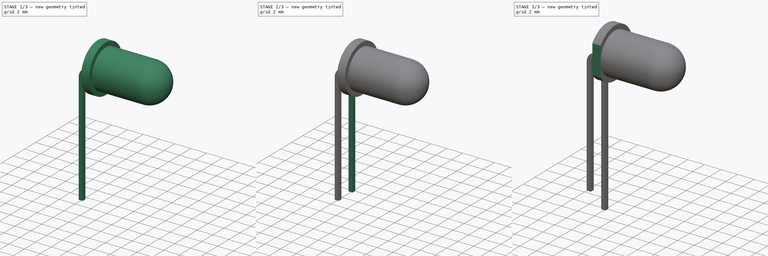
[diagram: build sequence overview — one tinted view per stage of 3, left to right]
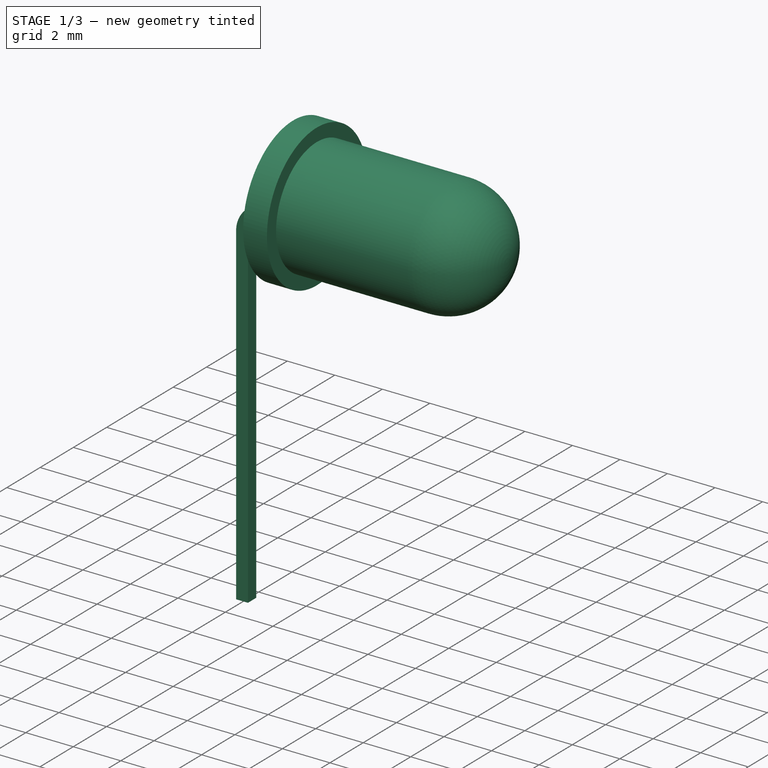
[diagram: stage 1 of 3 — iso view after this stage's code; geometry added in this stage tinted green]
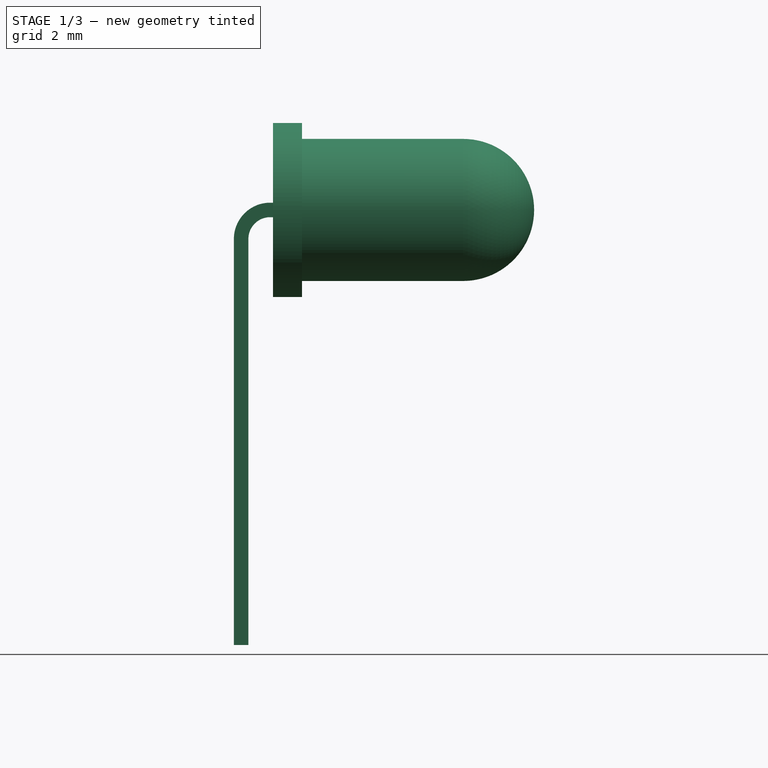
[diagram: stage 1 of 3 — front view after this stage's code; geometry added in this stage tinted green]
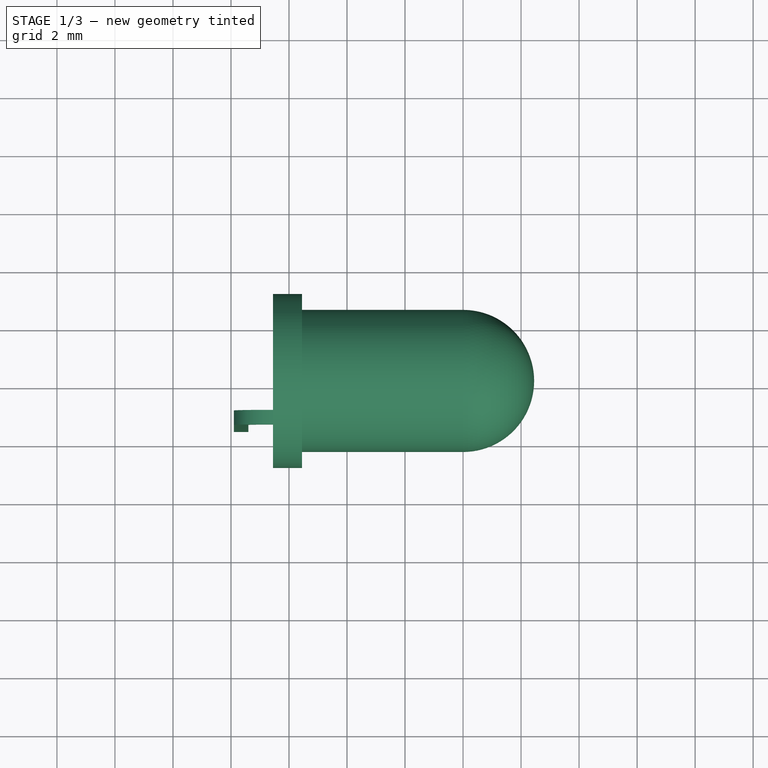
[diagram: stage 1 of 3 — top view after this stage's code; geometry added in this stage tinted green]
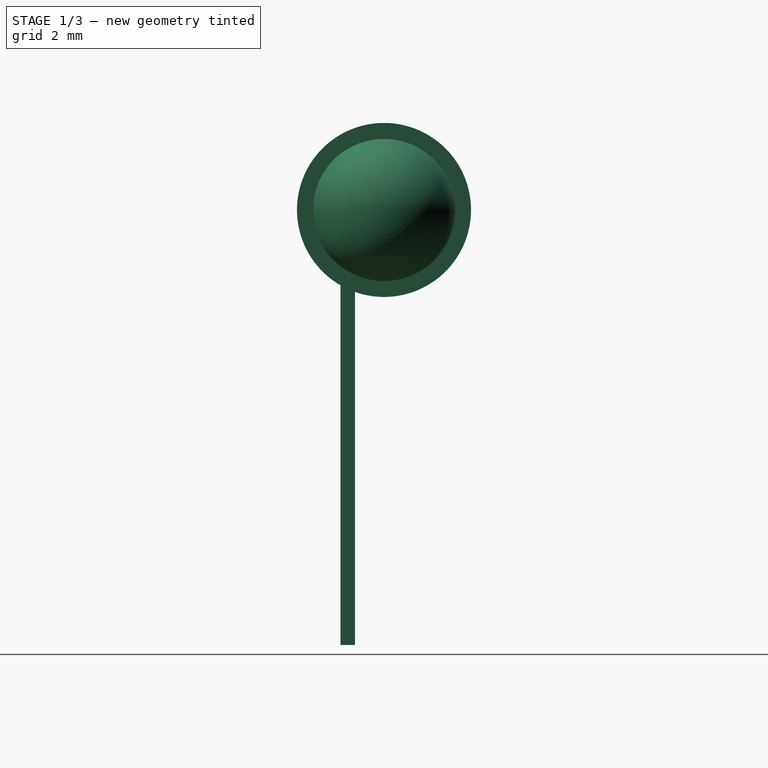
[diagram: stage 1 of 3 — right view after this stage's code; geometry added in this stage tinted green]
FCSTD DOCUMENT  (FreeCAD 1.0R38641 +678 (Git))
Label: LED
License: All rights reserved
LicenseURL: https://en.wikipedia.org/wiki/All_rights_reserved
objects: Sketcher::SketchObject×6, PartDesign::AdditivePipe×2, PartDesign::Revolution×1, PartDesign::Pad×1, PartDesign::Pocket×1, PartDesign::Body×1, App::Part×1
note: 28 computed .brp shape members not serialized (recipe doc carries the construction recipe); baked Part::Feature solids carry a one-line shape summary decoded from their .brp

FEATURE [Sketcher::SketchObject] Sketch
  ArcFitTolerance = 1e-06
  AttachmentSupport = -> [XY_Plane]
  FullyConstrained = true
  MakeInternals = false
  MapMode = 5
  sketch-geometry (8):
    g0: LineSegment StartX=-2e-15 StartY=2.45 StartZ=0 EndX=-5.55 EndY=2.45 EndZ=0
    g1: LineSegment StartX=-5.55 StartY=2.45 StartZ=0 EndX=-5.55 EndY=3 EndZ=0
    g2: LineSegment StartX=-5.55 StartY=3 StartZ=0 EndX=-6.55 EndY=3 EndZ=0
    g3: LineSegment StartX=-6.55 StartY=3 StartZ=0 EndX=-6.55 EndY=0 EndZ=0
    g4: ArcOfCircle CenterX=0 CenterY=0 CenterZ=0 NormalX=0 NormalY=0 NormalZ=1 AngleXU=0 Radius=2.45 StartAngle=0 EndAngle=1.5708
    g5: LineSegment StartX=2.45 StartY=0 StartZ=0 EndX=-6.55 EndY=0 EndZ=0
    g6: GeomPoint X=0 Y=0 Z=0
    g7: LineSegment [constr] StartX=-5.55 StartY=2.45 StartZ=0 EndX=-5.55 EndY=0 EndZ=0
  constraints (22):
    c: PointOnObject(g0,g-2)
    c: Horizontal(g0)
    c: Coincident(g0,g1)
    c: Vertical(g1)
    c: Coincident(g1,g2)
    c: Horizontal(g2)
    c: Coincident(g2,g3)
    c: Vertical(g3)
    c: Coincident(g4,g-1)
    c: Coincident(g4,g0)
    c: Horizontal(g5)
    c: PointOnObject(g6,g5)
    c: Coincident(g6,g4)
    c: Coincident(g7,g0)
    c: Vertical(g7)
    c: DistanceX(g2,g2) = 1
    c: Coincident(g4,g5)
    c: PointOnObject(g7,g5)
    c: Coincident(g3,g5)
    c: DistanceX(g5,g5) = 9
    c: DistanceY(g3,g3) = 3
    c: DistanceY(g7,g7) = 2.45
FEATURE [PartDesign::Revolution] Revolution
  Angle = 360
  Angle2 = 60
  Axis = (1,0,0)
  Base = (0,0,0)
  Profile = -> Sketch
  ReferenceAxis = -> X_Axis
  Refine = true
  Reversed = true
  Suppressed = false
  Type = 0
FEATURE [Sketcher::SketchObject] Sketch001
  ArcFitTolerance = 1e-06
  AttachmentSupport = -> [Revolution]
  FullyConstrained = true
  MakeInternals = false
  MapMode = 5
  Placement = pos=(-6.55,0,0) rot=(0.57735,-0.57735,-0.57735;2.0944rad)
  sketch-geometry (9):
    g0: LineSegment StartX=-1.5 StartY=0.25 StartZ=0 EndX=-1.5 EndY=-0.25 EndZ=0
    g1: LineSegment StartX=-1.5 StartY=-0.25 StartZ=0 EndX=-1 EndY=-0.25 EndZ=0
    g2: LineSegment StartX=-1 StartY=-0.25 StartZ=0 EndX=-1 EndY=0.25 EndZ=0
    g3: LineSegment StartX=-1 StartY=0.25 StartZ=0 EndX=-1.5 EndY=0.25 EndZ=0
    g4: LineSegment StartX=1 StartY=0.25 StartZ=0 EndX=1 EndY=-0.25 EndZ=0
    g5: LineSegment StartX=1 StartY=-0.25 StartZ=0 EndX=1.5 EndY=-0.25 EndZ=0
    g6: LineSegment StartX=1.5 StartY=-0.25 StartZ=0 EndX=1.5 EndY=0.25 EndZ=0
    g7: LineSegment StartX=1.5 StartY=0.25 StartZ=0 EndX=1 EndY=0.25 EndZ=0
    g8: LineSegment [constr] StartX=-1 StartY=0.25 StartZ=0 EndX=1 EndY=0.25 EndZ=0
  constraints (25):
    c: Coincident(g0,g1)
    c: Coincident(g1,g2)
    c: Coincident(g2,g3)
    c: Coincident(g3,g0)
    c: Vertical(g0)
    c: Vertical(g2)
    c: Horizontal(g1)
    c: Horizontal(g3)
    c: Coincident(g4,g5)
    c: Coincident(g5,g6)
    c: Coincident(g6,g7)
    c: Coincident(g7,g4)
    c: Vertical(g4)
    c: Vertical(g6)
    c: Horizontal(g5)
    c: Horizontal(g7)
    c: DistanceX(g3,g3) = 0.5
    c: DistanceY(g0,g0) = 0.5
    c: Equal(g7,g3)
    c: Coincident(g8,g2)
    c: Coincident(g8,g4)
    c: Horizontal(g8)
    c: Equal(g4,g0)
    c: Symmetric(g2,g4,g-1)
    c: DistanceX(g8,g8) = 2
FEATURE [Sketcher::SketchObject] Sketch003
  ArcFitTolerance = 1e-06
  AttachmentSupport = -> [XZ_Plane,Revolution]
  ExternalGeometry = -> [Revolution]
  FullyConstrained = true
  MakeInternals = false
  MapMode = 5
  Placement = pos=(0,0,0) rot=(1,0,0;1.5708rad)
  sketch-geometry (4):
    g0: LineSegment StartX=-6.55 StartY=-2e-16 StartZ=0 EndX=-6.65 EndY=-2e-16 EndZ=0
    g1: LineSegment StartX=-7.65 StartY=-1 StartZ=0 EndX=-7.65 EndY=-15 EndZ=0
    g2: ArcOfCircle CenterX=-6.65 CenterY=-1 CenterZ=0 NormalX=0 NormalY=0 NormalZ=1 AngleXU=0 Radius=1 StartAngle=1.5708 EndAngle=3.14159
    g3: GeomPoint [constr] X=-7.65 Y=0 Z=0
  constraints (10):
    c: Symmetric(g-3,g-3,g0)
    c: PointOnObject(g3,g-1)
    c: Vertical(g1)
    c: PointOnObject(g3,g0)
    c: PointOnObject(g3,g1)
    c: Tangent(g0,g2) = -1.5708
    c: Tangent(g1,g2) = -1.5708
    c: DistanceX(g0,g0) = 0.1
    c: DistanceX(g1,g0) = 1
    c: DistanceY(g1,g1) = 14
FEATURE [Sketcher::SketchObject] Sketch005
  ArcFitTolerance = 1e-06
  AttachmentSupport = -> [Revolution]
  ExternalGeometry = -> [Sketch001]
  FullyConstrained = true
  MakeInternals = false
  MapMode = 5
  Placement = pos=(-6.55,0,0) rot=(0.57735,-0.57735,-0.57735;2.0944rad)
  sketch-geometry (4):
    g0: LineSegment StartX=1 StartY=0.25 StartZ=0 EndX=1.5 EndY=0.25 EndZ=0
    g1: LineSegment StartX=1.5 StartY=-0.25 StartZ=0 EndX=1.5 EndY=0.25 EndZ=0
    g2: LineSegment StartX=1 StartY=0.25 StartZ=0 EndX=1 EndY=-0.25 EndZ=0
    g3: LineSegment StartX=1 StartY=-0.25 StartZ=0 EndX=1.5 EndY=-0.25 EndZ=0
  constraints (8):
    c: Coincident(g0,g-6)
    c: Coincident(g0,g-4)
    c: Coincident(g1,g-5)
    c: Coincident(g1,g0)
    c: Coincident(g2,g0)
    c: Coincident(g2,g-6)
    c: Coincident(g3,g2)
    c: Coincident(g3,g1)
FEATURE [Sketcher::SketchObject] Sketch006
  ArcFitTolerance = 1e-06
  AttachmentSupport = -> [Revolution]
  ExternalGeometry = -> [Sketch001]
  FullyConstrained = true
  MakeInternals = false
  MapMode = 5
  Placement = pos=(-6.55,0,0) rot=(0.57735,-0.57735,-0.57735;2.0944rad)
  sketch-geometry (4):
    g0: LineSegment StartX=-1.5 StartY=0.25 StartZ=0 EndX=-1 EndY=0.25 EndZ=0
    g1: LineSegment StartX=-1 StartY=0.25 StartZ=0 EndX=-1 EndY=-0.25 EndZ=0
    g2: LineSegment StartX=-1 StartY=-0.25 StartZ=0 EndX=-1.5 EndY=-0.25 EndZ=0
    g3: LineSegment StartX=-1.5 StartY=-0.25 StartZ=0 EndX=-1.5 EndY=0.25 EndZ=0
  constraints (8):
    c: Coincident(g0,g-6)
    c: Coincident(g0,g-4)
    c: Coincident(g1,g0)
    c: Coincident(g1,g-5)
    c: Coincident(g2,g-5)
    c: Coincident(g2,g-6)
    c: Coincident(g3,g2)
    c: Coincident(g3,g0)
FEATURE [PartDesign::AdditivePipe] AdditivePipe
  AuxilleryCurvelinear = true
  AuxillerySpineTangent = false
  BaseFeature = -> Revolution
  Binormal = (0,0,0)
  Mode = 0
  Profile = -> Sketch005
  Refine = true
  Spine = -> Sketch003
  SpineTangent = false
  Suppressed = false
  Transformation = 0
  Transition = 0
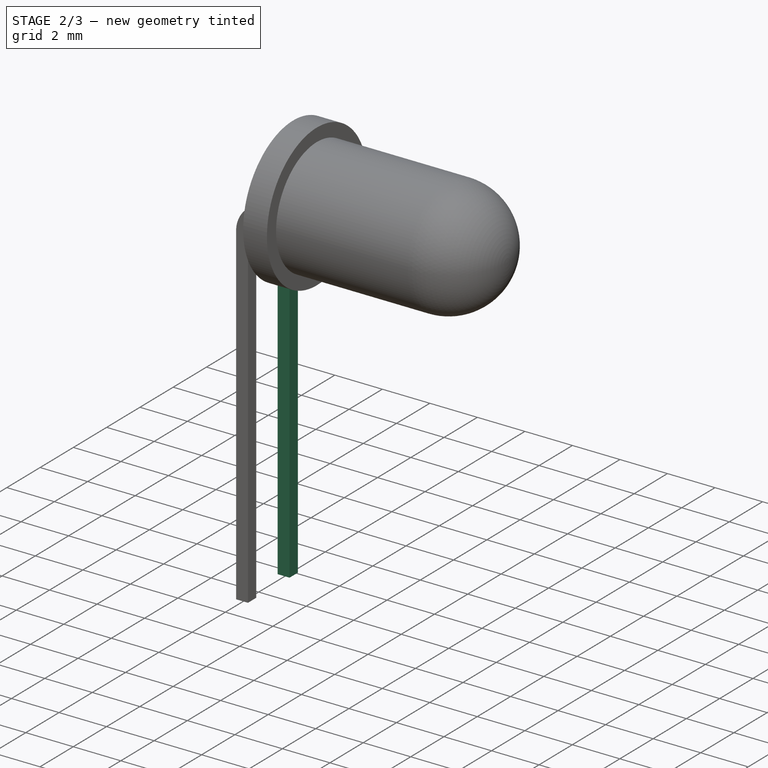
[diagram: stage 2 of 3 — iso view after this stage's code; geometry added in this stage tinted green]
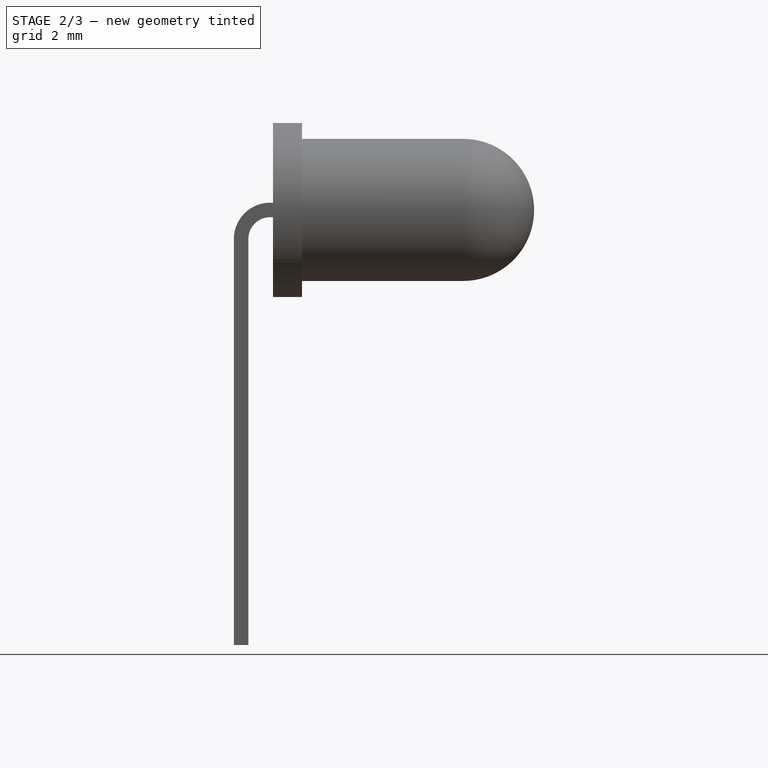
[diagram: stage 2 of 3 — front view after this stage's code; geometry added in this stage tinted green]
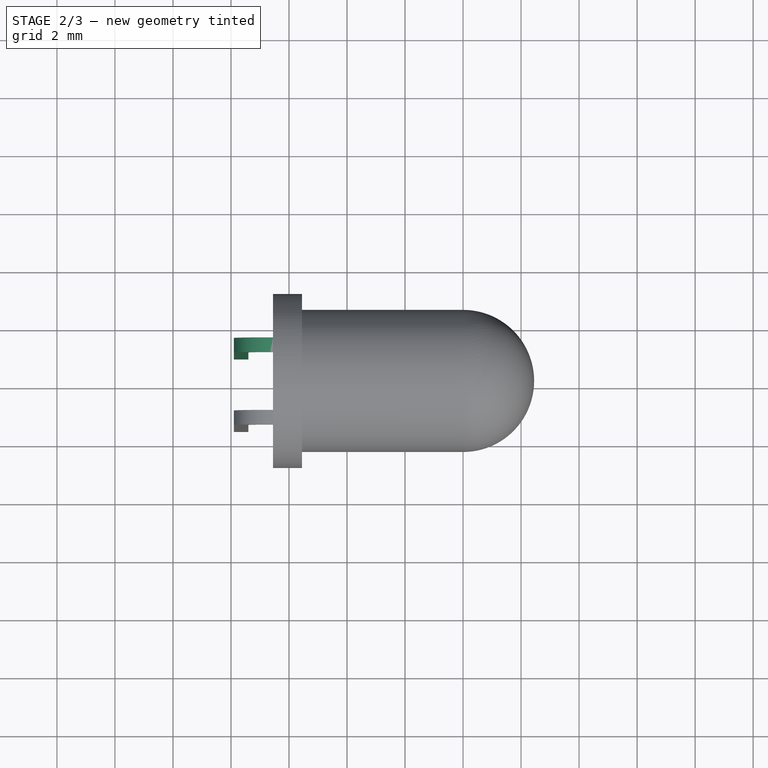
[diagram: stage 2 of 3 — top view after this stage's code; geometry added in this stage tinted green]
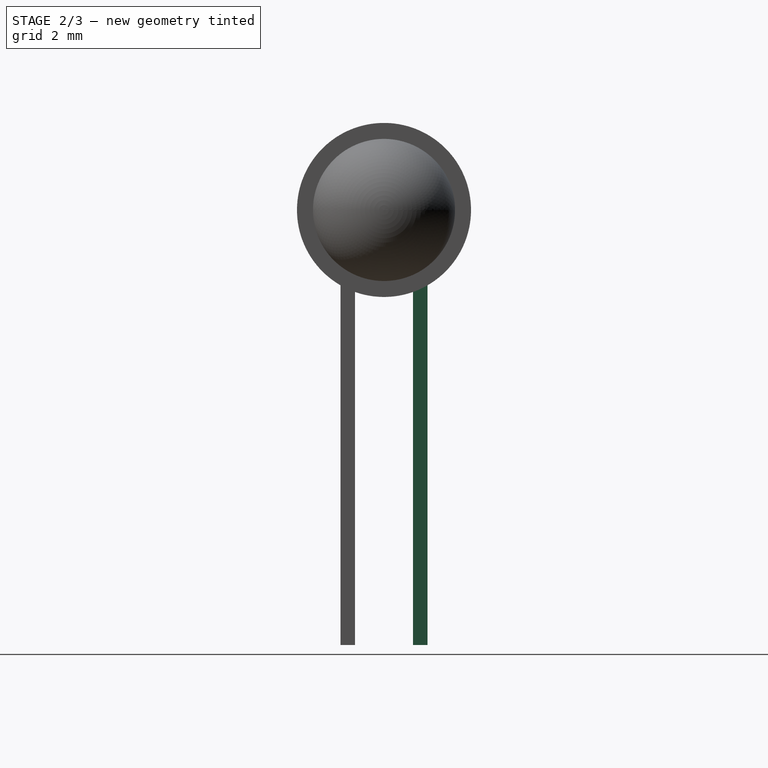
[diagram: stage 2 of 3 — right view after this stage's code; geometry added in this stage tinted green]
FEATURE [PartDesign::AdditivePipe] AdditivePipe001
  AuxilleryCurvelinear = true
  AuxillerySpineTangent = false
  BaseFeature = -> AdditivePipe
  Binormal = (0,0,0)
  Mode = 0
  Profile = -> Sketch006
  Refine = true
  Spine = -> Sketch003
  SpineTangent = false
  Suppressed = false
  Transformation = 0
  Transition = 0
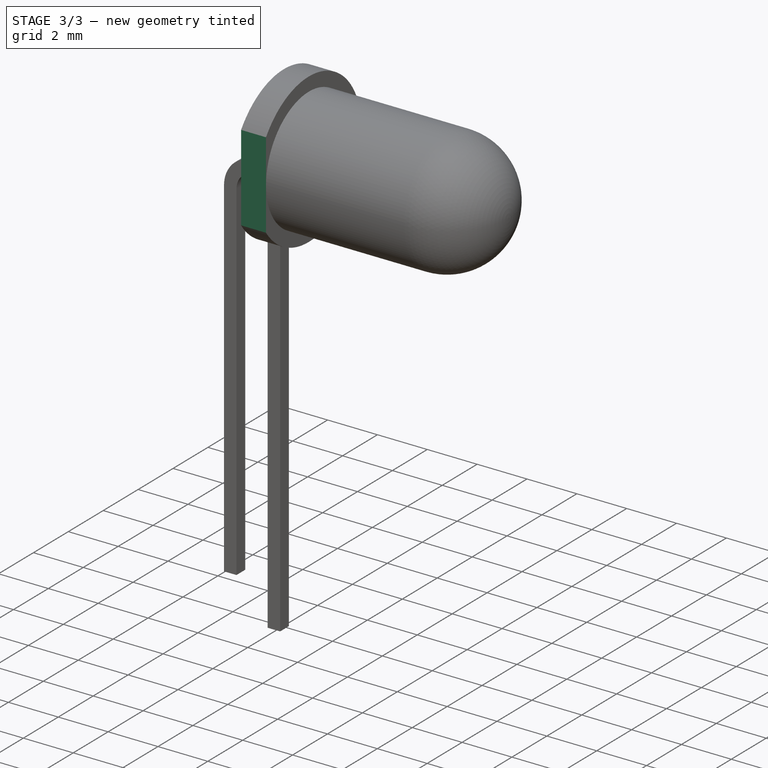
[diagram: stage 3 of 3 — iso view after this stage's code; geometry added in this stage tinted green]
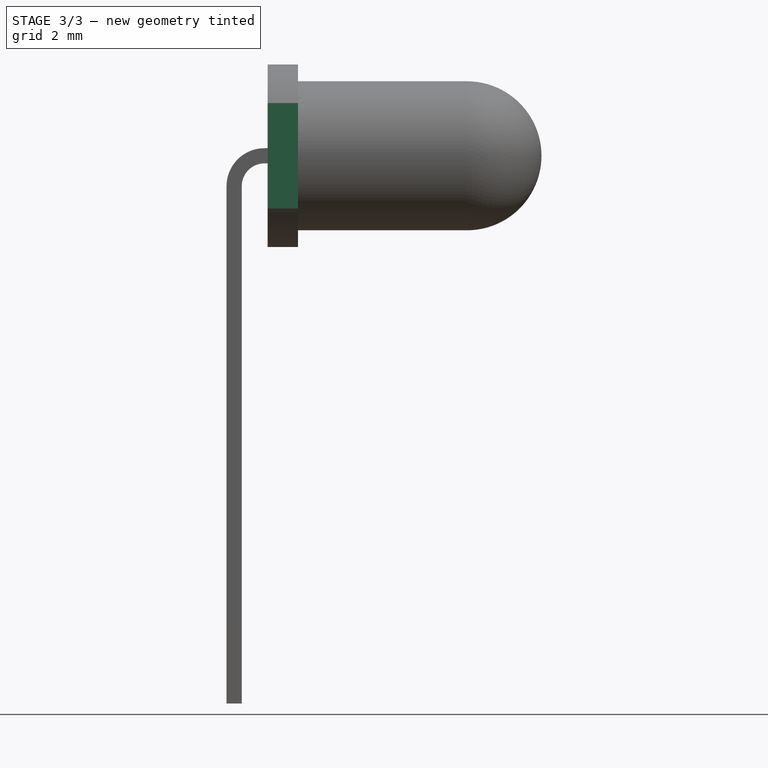
[diagram: stage 3 of 3 — front view after this stage's code; geometry added in this stage tinted green]
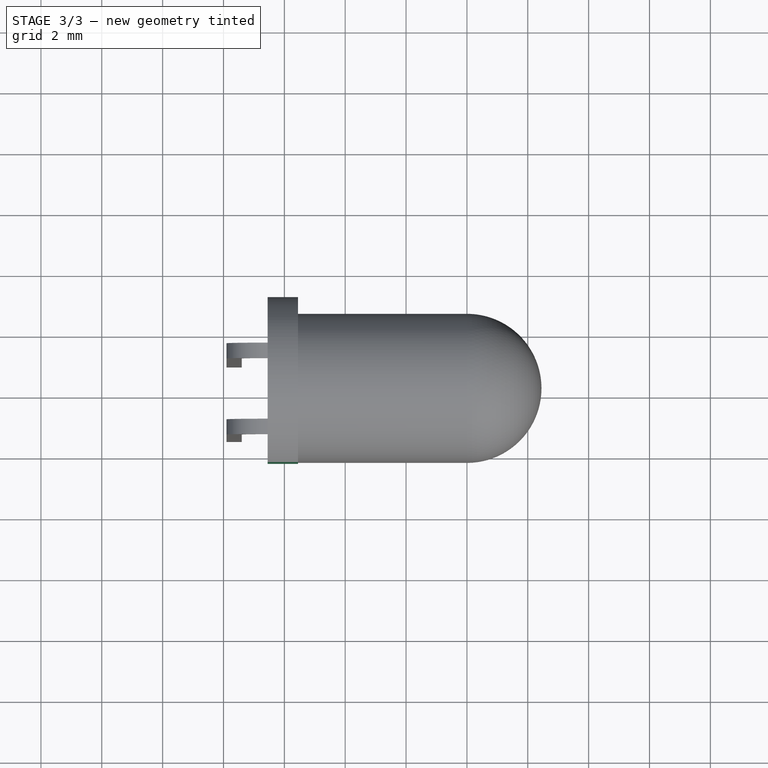
[diagram: stage 3 of 3 — top view after this stage's code; geometry added in this stage tinted green]
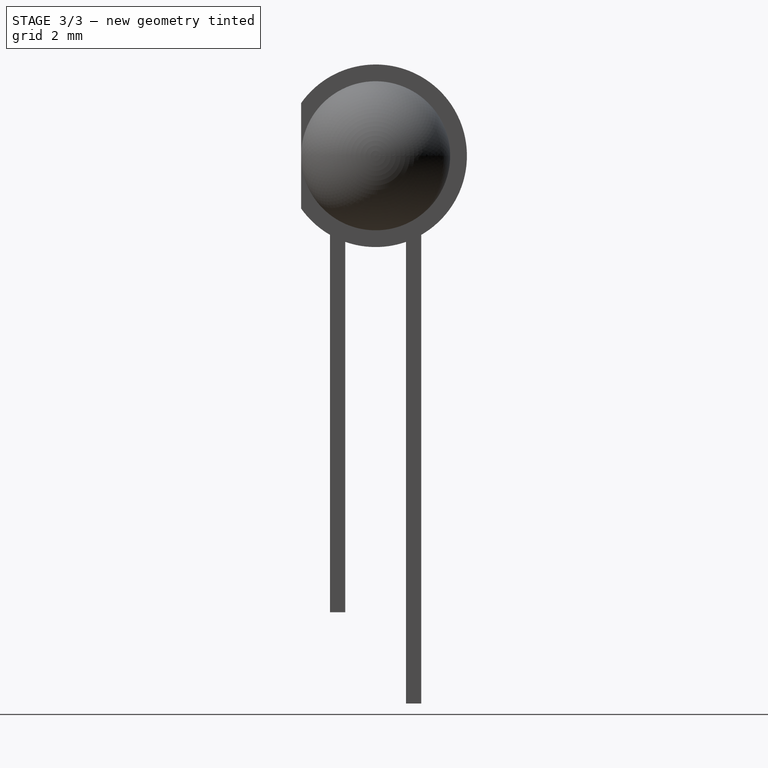
[diagram: stage 3 of 3 — right view after this stage's code; geometry added in this stage tinted green]
FEATURE [PartDesign::Pad] Pad
  BaseFeature = -> AdditivePipe001
  Direction = (0,0,-1)
  Length = 3
  Length2 = 10
  Profile = -> AdditivePipe001 [Face21]
  Refine = true
  Suppressed = false
  Type = 0
FEATURE [Sketcher::SketchObject] Sketch007
  ArcFitTolerance = 1e-06
  AttachmentSupport = -> [Pad]
  ExternalGeometry = -> [Pad]
  FullyConstrained = true
  MakeInternals = false
  MapMode = 5
  Placement = pos=(-5.55,0,0) rot=(0.57735,0.57735,0.57735;2.0944rad)
  sketch-geometry (3):
    g0: LineSegment StartX=-2.45 StartY=1.73133 StartZ=0 EndX=-2.45 EndY=-1.73133 EndZ=0
    g1: ArcOfCircle CenterX=-1.1943e-05 CenterY=5e-16 CenterZ=0 NormalX=0 NormalY=0 NormalZ=1 AngleXU=0 Radius=2.99999 StartAngle=2.52641 EndAngle=3.75678
    g2: GeomPoint X=-2.45 Y=2e-16 Z=0
  constraints (8):
    c: PointOnObject(g0,g-3)
    c: PointOnObject(g0,g-3)
    c: Vertical(g0)
    c: Coincident(g1,g0)
    c: Coincident(g1,g0)
    c: Symmetric(g0,g0,g2)
    c: PointOnObject(g2,g-4)
    c: Tangent(g1,g-3)
FEATURE [PartDesign::Pocket] Pocket
  BaseFeature = -> Pad
  Direction = (-1,0,0)
  Length = 5
  Length2 = 5
  Profile = -> Sketch007
  ReferenceAxis = -> Sketch007 [N_Axis]
  Refine = true
  Suppressed = false
  Type = 0
FEATURE [PartDesign::Body] Body
  AllowCompound = false
  Group = -> [Sketch,Revolution,Sketch001,Sketch003,Sketch005,Sketch006,AdditivePipe,AdditivePipe001,Pad,Sketch007,Pocket]
  Origin = -> Origin
  Tip = -> Pocket
FEATURE [App::Part] Part  label="LED"
  Group = -> [Body]
  Origin = -> Origin001
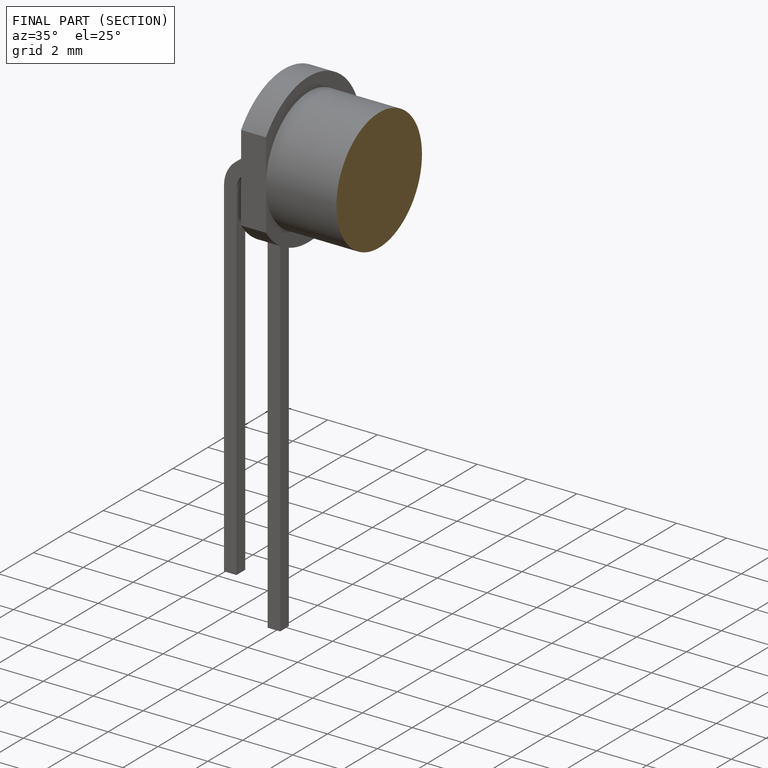
[diagram: finished part — half-section view (interior)]
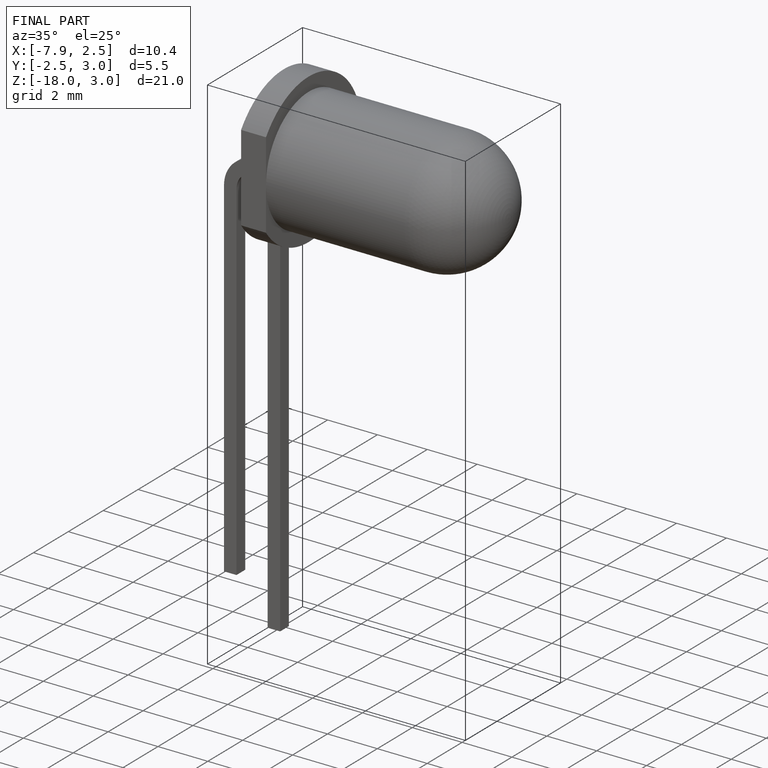
[diagram: finished part — iso view with bounding-box wireframe]
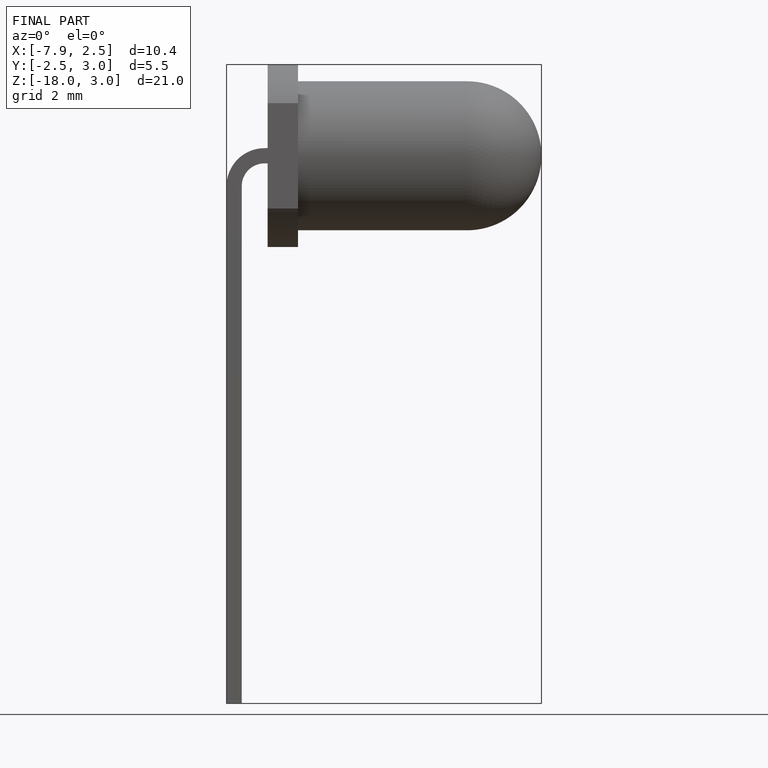
[diagram: finished part — front view with bounding-box wireframe]
